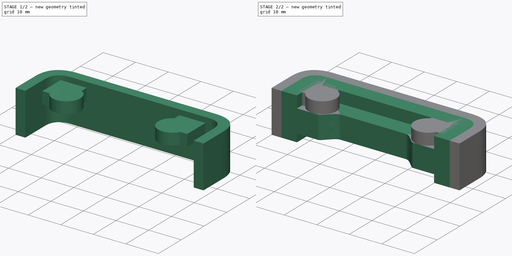
[diagram: build sequence overview — one tinted view per stage of 2, left to right]
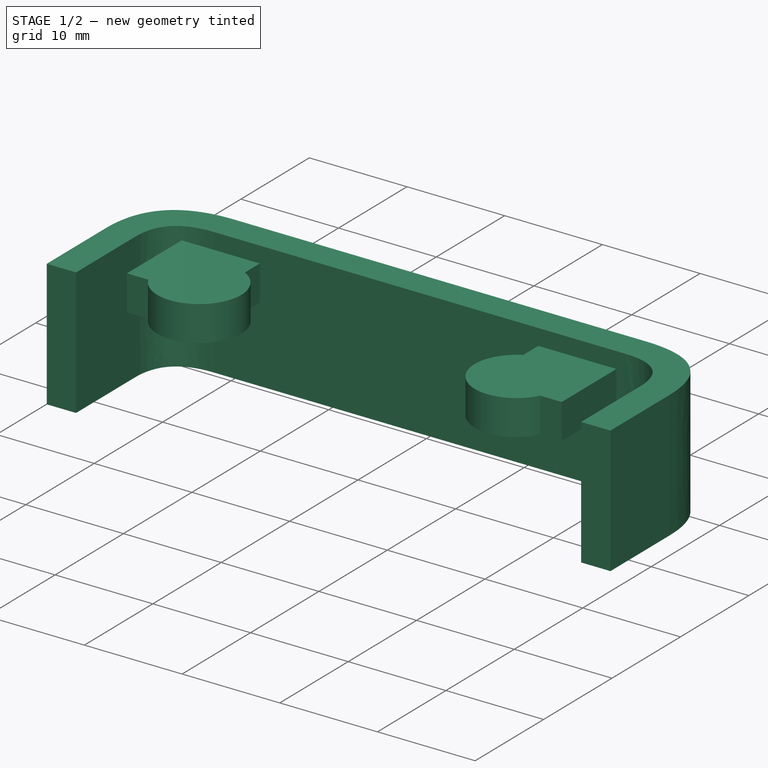
[diagram: stage 1 of 2 — iso view after this stage's code; geometry added in this stage tinted green]
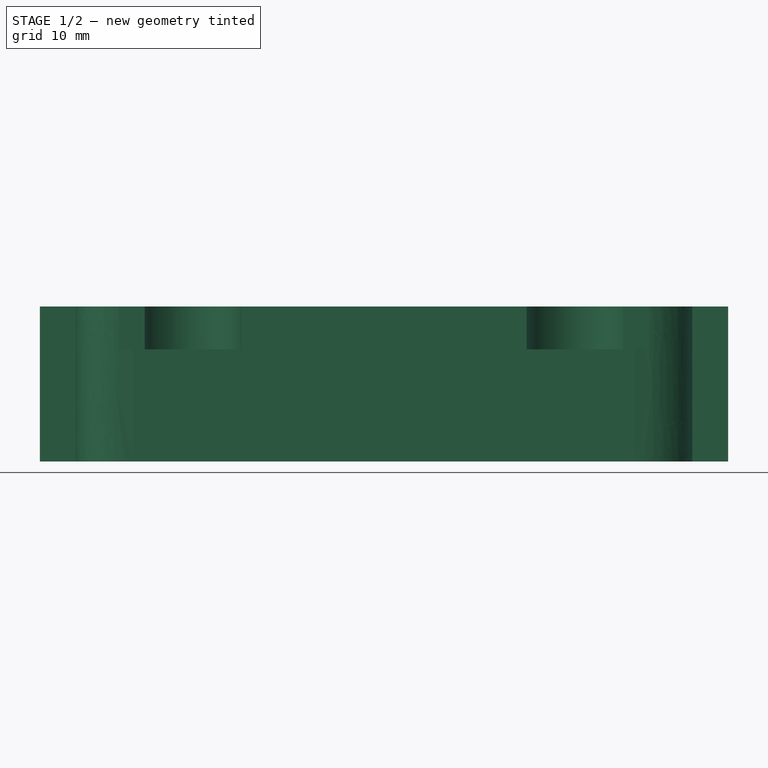
[diagram: stage 1 of 2 — front view after this stage's code; geometry added in this stage tinted green]
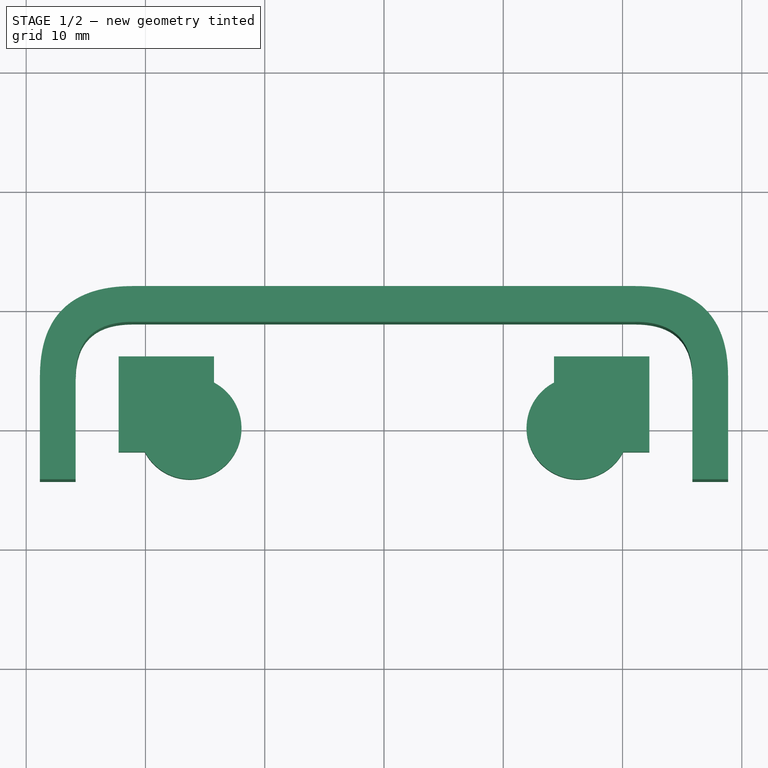
[diagram: stage 1 of 2 — top view after this stage's code; geometry added in this stage tinted green]
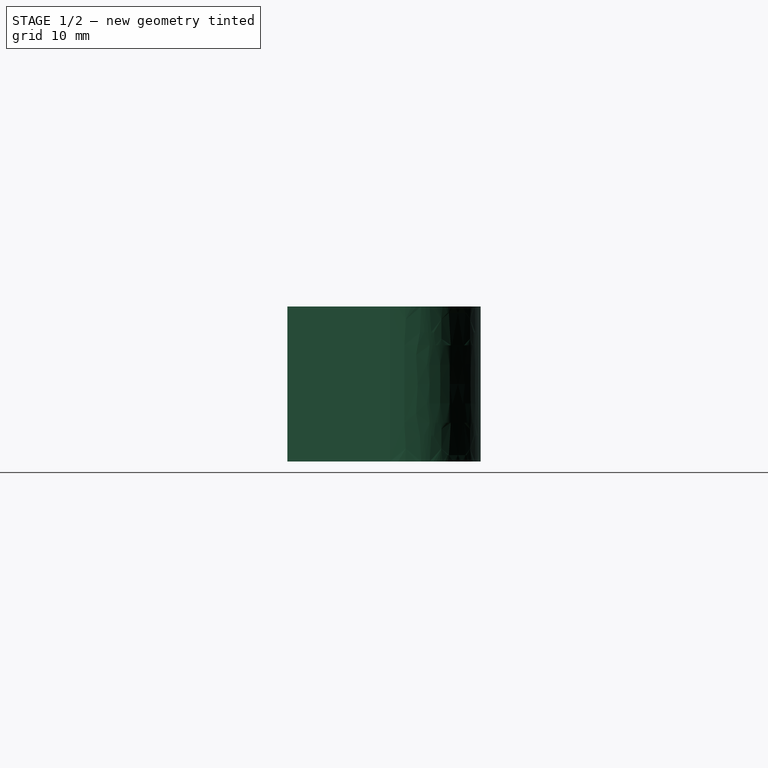
[diagram: stage 1 of 2 — right view after this stage's code; geometry added in this stage tinted green]
FCSTD DOCUMENT  (FreeCAD 0.19R0.19.2)
Label: 007
License: All rights reserved
LicenseURL: http://en.wikipedia.org/wiki/All_rights_reserved
objects: Sketcher::SketchObject×4, Part::Extrusion×4
note: 8 computed .brp shape members not serialized (recipe doc carries the construction recipe); baked Part::Feature solids carry a one-line shape summary decoded from their .brp

FEATURE [Sketcher::SketchObject] Sketch002  label="attatchmentPieceEndScrewHoleCaps"
  FullyConstrained = true
  sketch-geometry (10):
    g0: ArcOfCircle CenterX=16.25 CenterY=0 CenterZ=0 NormalX=0 NormalY=0 NormalZ=1 AngleXU=0 Radius=4.3 StartAngle=2.05456 EndAngle=5.79942
    g1: ArcOfCircle CenterX=-16.25 CenterY=0 CenterZ=0 NormalX=0 NormalY=0 NormalZ=1 AngleXU=0 Radius=4.3 StartAngle=3.62536 EndAngle=7.37022
    g2: LineSegment StartX=14.25 StartY=3.80657 StartZ=0 EndX=14.25 EndY=6 EndZ=0
    g3: LineSegment StartX=20.0566 StartY=-2 StartZ=0 EndX=22.25 EndY=-2 EndZ=0
    g4: LineSegment StartX=-22.25 StartY=-2 StartZ=0 EndX=-20.0566 EndY=-2 EndZ=0
    g5: LineSegment StartX=-14.25 StartY=3.80657 StartZ=0 EndX=-14.25 EndY=6 EndZ=0
    g6: LineSegment StartX=-14.25 StartY=6 StartZ=0 EndX=-22.25 EndY=6 EndZ=0
    g7: LineSegment StartX=-22.25 StartY=-2 StartZ=0 EndX=-22.25 EndY=6 EndZ=0
    g8: LineSegment StartX=22.25 StartY=-2 StartZ=0 EndX=22.25 EndY=6 EndZ=0
    g9: LineSegment StartX=14.25 StartY=6 StartZ=0 EndX=22.25 EndY=6 EndZ=0
  constraints (25):
    c: Block(g1)
    c: Block(g0)
    c: Vertical(g2)
    c: Horizontal(g3)
    c: Horizontal(g4)
    c: Vertical(g5)
    c: Coincident(g6,g5)
    c: Horizontal(g6)
    c: Coincident(g7,g4)
    c: Vertical(g7)
    c: Coincident(g8,g3)
    c: Vertical(g8)
    c: Coincident(g9,g2)
    c: Horizontal(g9)
    c: Coincident(g7,g6)
    c: Coincident(g8,g9)
    c: Block(g9)
    c: Block(g8)
    c: Block(g6)
    c: Block(g7)
    c: Coincident(g1,g4)
    c: Coincident(g1,g5)
    c: Coincident(g0,g2)
    c: Coincident(g0,g3)
    c: Block(g2)
FEATURE [Part::Extrusion] Extrude002  label="attatchmentPieceEndScrewHoleCaps001"
  Base = -> Sketch002
  Dir = (0,0,1)
  DirMode = 2
  FaceMakerClass = Part::FaceMakerBullseye
  LengthFwd = 3.6
  LengthRev = 0
  Placement = pos=(0,0,7) rot=(0,0,1;0rad)
  Solid = true
  Symmetric = false
FEATURE [Sketcher::SketchObject] Sketch003  label="mainBumpperPieceAttatchment"
  FullyConstrained = true
  sketch-geometry (36):
    g0: Circle CenterX=28.85 CenterY=4.3 CenterZ=0 NormalX=0 NormalY=0 NormalZ=1 AngleXU=0 Radius=1
    g1: Circle CenterX=28.85 CenterY=11.9 CenterZ=0 NormalX=0 NormalY=0 NormalZ=1 AngleXU=0 Radius=1
    g2: Circle CenterX=21.05 CenterY=11.9 CenterZ=0 NormalX=0 NormalY=0 NormalZ=1 AngleXU=0 Radius=1
    g3: BSplineCurve PolesCount=3 KnotsCount=2 Degree=2 IsPeriodic=0
    g4: GeomPoint X=28.85 Y=4.3 Z=0
    g5: GeomPoint X=21.05 Y=11.9 Z=0
    g6: Circle CenterX=-28.85 CenterY=4.3 CenterZ=0 NormalX=0 NormalY=0 NormalZ=1 AngleXU=0 Radius=1
    g7: Circle CenterX=-28.85 CenterY=11.9 CenterZ=0 NormalX=0 NormalY=0 NormalZ=1 AngleXU=0 Radius=1
    g8: Circle CenterX=-21.05 CenterY=11.9 CenterZ=0 NormalX=0 NormalY=0 NormalZ=1 AngleXU=0 Radius=1
    g9: BSplineCurve PolesCount=3 KnotsCount=2 Degree=2 IsPeriodic=0
    g10: GeomPoint X=-28.85 Y=4.3 Z=0
    g11: GeomPoint X=-21.05 Y=11.9 Z=0
    g12: LineSegment StartX=-28.85 StartY=4.3 StartZ=0 EndX=-28.85 EndY=-4.3 EndZ=0
    g13: LineSegment StartX=-21.05 StartY=11.9 StartZ=0 EndX=21.05 EndY=11.9 EndZ=0
    g14: LineSegment StartX=28.85 StartY=4.3 StartZ=0 EndX=28.85 EndY=-4.3 EndZ=0
    g15: LineSegment StartX=25.85 StartY=8.9 StartZ=0 EndX=25.85 EndY=9.2 EndZ=0
    g16: LineSegment StartX=-25.85 StartY=8.9 StartZ=0 EndX=-25.85 EndY=9.19666 EndZ=0
    g17: LineSegment StartX=-25.85 StartY=9.19666 StartZ=0 EndX=-26.15 EndY=9.19666 EndZ=0
    g18: LineSegment StartX=26.15 StartY=9.2 StartZ=0 EndX=25.85 EndY=9.2 EndZ=0
    g19: Circle CenterX=21.05 CenterY=9.2 CenterZ=0 NormalX=0 NormalY=0 NormalZ=1 AngleXU=0 Radius=1
    g20: Circle CenterX=26.15 CenterY=9.2 CenterZ=0 NormalX=0 NormalY=0 NormalZ=1 AngleXU=0 Radius=1
    g21: Circle CenterX=26.15 CenterY=4.3 CenterZ=0 NormalX=0 NormalY=0 NormalZ=1 AngleXU=0 Radius=1
    g22: BSplineCurve PolesCount=3 KnotsCount=2 Degree=2 IsPeriodic=0
    g23: GeomPoint X=21.05 Y=9.2 Z=0
    g24: GeomPoint X=26.15 Y=4.3 Z=0
    g25: Circle CenterX=-21.05 CenterY=9.2 CenterZ=0 NormalX=0 NormalY=0 NormalZ=1 AngleXU=0 Radius=1
    g26: Circle CenterX=-26.15 CenterY=9.19666 CenterZ=0 NormalX=0 NormalY=0 NormalZ=1 AngleXU=0 Radius=1
    g27: Circle CenterX=-26.15 CenterY=4.3 CenterZ=0 NormalX=0 NormalY=0 NormalZ=1 AngleXU=0 Radius=1
    g28: BSplineCurve PolesCount=3 KnotsCount=2 Degree=2 IsPeriodic=0
    g29: GeomPoint X=-21.05 Y=9.2 Z=0
    g30: GeomPoint X=-26.15 Y=4.3 Z=0
    g31: LineSegment StartX=-26.15 StartY=-4.3 StartZ=0 EndX=-26.15 EndY=4.3 EndZ=0
    g32: LineSegment StartX=-21.05 StartY=9.2 StartZ=0 EndX=21.05 EndY=9.2 EndZ=0
    g33: LineSegment StartX=26.15 StartY=-4.3 StartZ=0 EndX=26.15 EndY=4.3 EndZ=0
    g34: LineSegment StartX=-26.15 StartY=-4.3 StartZ=0 EndX=-28.85 EndY=-4.3 EndZ=0
    g35: LineSegment StartX=26.15 StartY=-4.3 StartZ=0 EndX=28.85 EndY=-4.3 EndZ=0
  constraints (66):
    c: Weight(g0) = 1
    c: Equal(g0,g1)
    c: Equal(g0,g2)
    c: InternalAlignment(g0,g3)
    c: InternalAlignment(g1,g3)
    c: InternalAlignment(g2,g3)
    c: InternalAlignment(g4,g3)
    c: InternalAlignment(g5,g3)
    c: Weight(g6) = 1
    c: Equal(g6,g7)
    c: Equal(g6,g8)
    c: InternalAlignment(g6,g9)
    c: InternalAlignment(g7,g9)
    c: InternalAlignment(g8,g9)
    c: InternalAlignment(g10,g9)
    c: InternalAlignment(g11,g9)
    c: Block(g3)
    c: Block(g9)
    c: Vertical(g12)
    c: Horizontal(g13)
    c: Vertical(g14)
    c: Block(g14)
    c: Block(g13)
    c: Block(g12)
    c: Vertical(g15)
    c: Vertical(g16)
    c: Block(g16)
    c: Coincident(g17,g16)
    c: Horizontal(g17)
    c: Distance(g17) = 0.3
    c: Horizontal(g18)
    c: Equal(g17,g18) = 0.3
    c: Block(g15)
    c: Coincident(g18,g15)
    c: Weight(g19) = 1
    c: Equal(g19,g20)
    c: Coincident(g20,g18)
    c: Equal(g19,g21)
    c: InternalAlignment(g19,g22)
    c: InternalAlignment(g20,g22)
    c: InternalAlignment(g21,g22)
    c: InternalAlignment(g23,g22)
    c: InternalAlignment(g24,g22)
    c: Weight(g25) = 1
    c: Equal(g25,g26)
    c: Coincident(g26,g17)
    c: Equal(g25,g27)
    c: InternalAlignment(g25,g28)
    c: InternalAlignment(g26,g28)
    c: InternalAlignment(g27,g28)
    c: InternalAlignment(g29,g28)
    c: InternalAlignment(g30,g28)
    c: Vertical(g31)
    c: Horizontal(g32)
    c: Vertical(g33)
    c: Block(g22)
    c: Block(g33)
    c: Block(g32)
    c: Block(g28)
    c: Block(g31)
    c: Coincident(g34,g31)
    c: Coincident(g34,g12)
    c: Horizontal(g34)
    c: Coincident(g35,g33)
    c: Coincident(g35,g14)
    c: Horizontal(g35)
FEATURE [Part::Extrusion] Extrude003
  Base = -> Sketch003
  Dir = (0,0,1)
  DirMode = 2
  FaceMakerClass = Part::FaceMakerBullseye
  LengthFwd = 13
  LengthRev = 0
  Placement = pos=(0,0,-2.4) rot=(0,0,1;0rad)
  Solid = true
  Symmetric = false
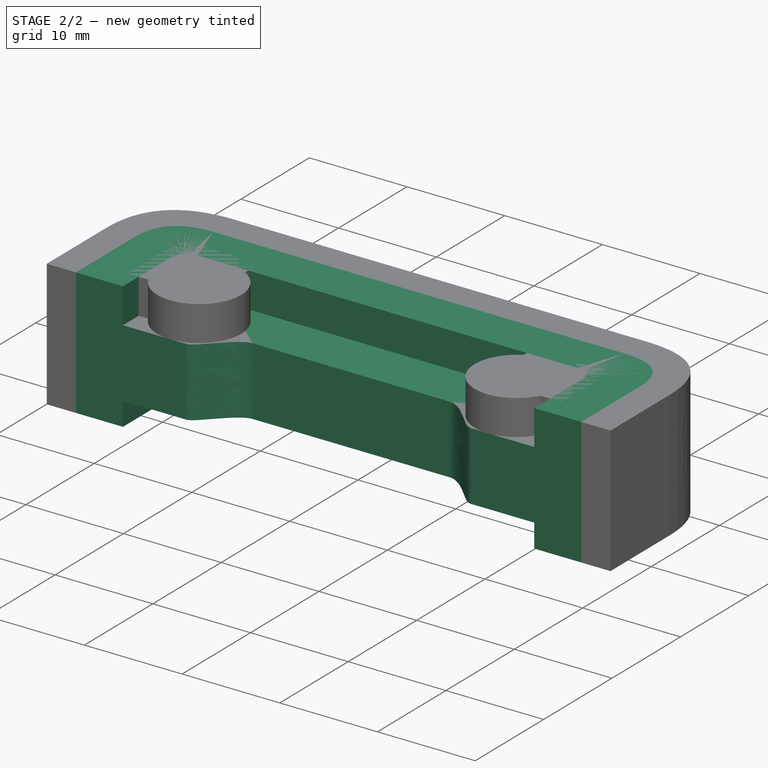
[diagram: stage 2 of 2 — iso view after this stage's code; geometry added in this stage tinted green]
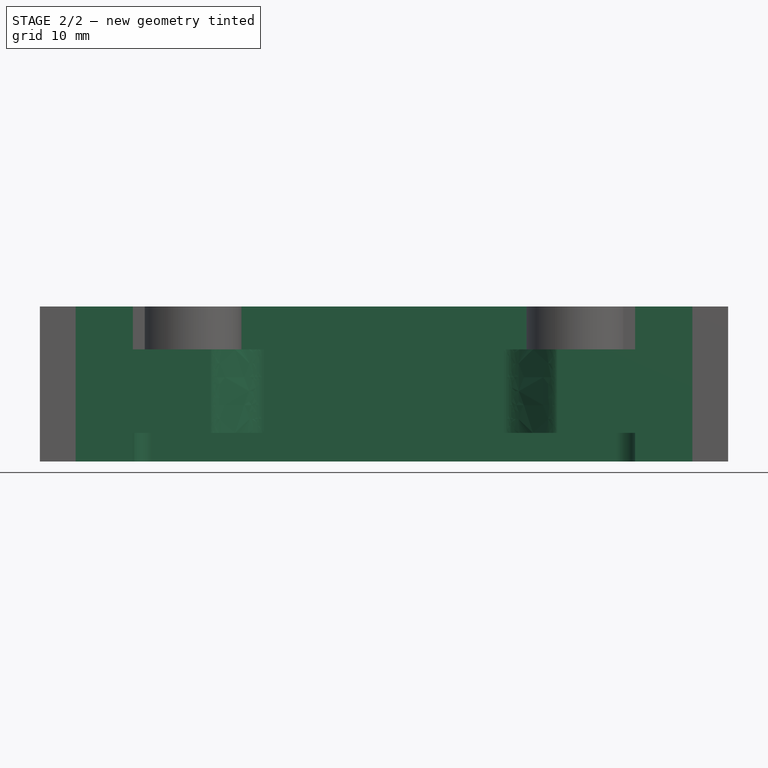
[diagram: stage 2 of 2 — front view after this stage's code; geometry added in this stage tinted green]
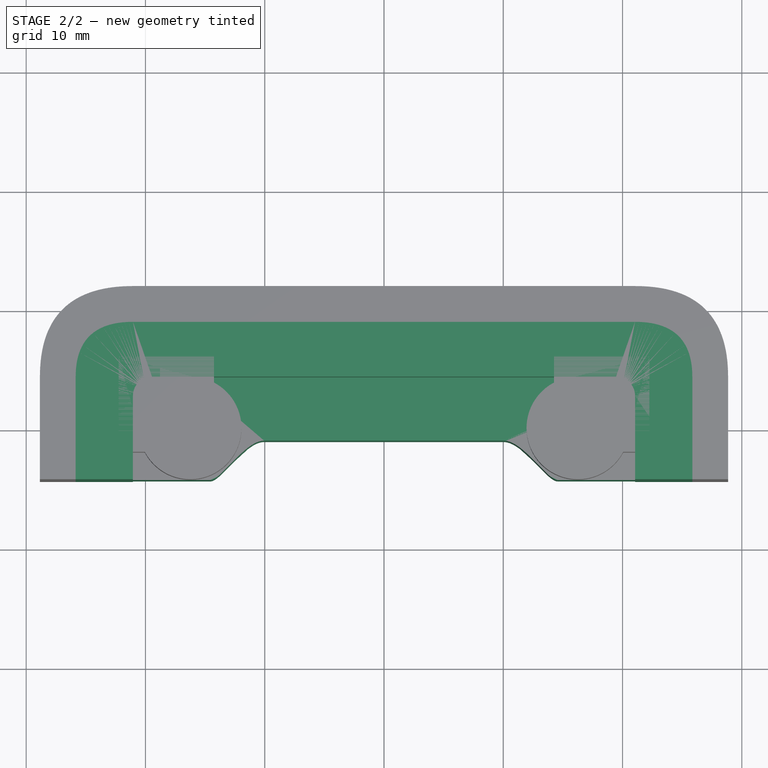
[diagram: stage 2 of 2 — top view after this stage's code; geometry added in this stage tinted green]
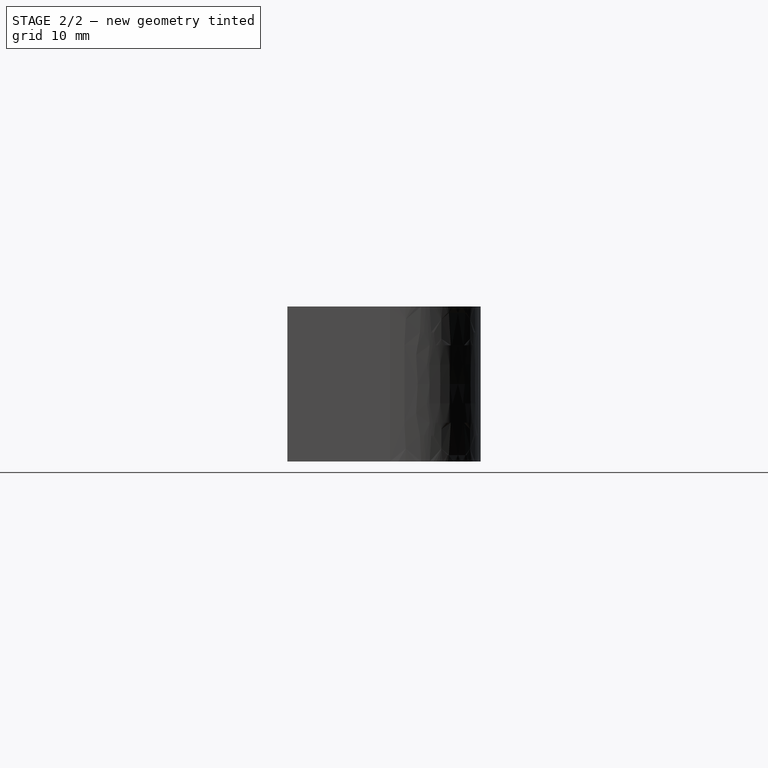
[diagram: stage 2 of 2 — right view after this stage's code; geometry added in this stage tinted green]
FEATURE [Sketcher::SketchObject] Sketch  label="attatchmentPiece"
  FullyConstrained = true
  sketch-geometry (28):
    g0: Circle CenterX=-16.25 CenterY=0 CenterZ=0 NormalX=0 NormalY=0 NormalZ=1 AngleXU=0 Radius=1.5
    g1: Circle CenterX=16.25 CenterY=0 CenterZ=0 NormalX=0 NormalY=0 NormalZ=1 AngleXU=0 Radius=1.5
    g2: LineSegment StartX=21.05 StartY=0 StartZ=0 EndX=21.05 EndY=-1 EndZ=0
    g3: LineSegment StartX=21.05 StartY=-1 StartZ=0 EndX=21.05 EndY=-4.3 EndZ=0
    g4: LineSegment StartX=-21.05 StartY=0 StartZ=0 EndX=-21.05 EndY=-1 EndZ=0
    g5: LineSegment StartX=-21.05 StartY=-1 StartZ=0 EndX=-21.05 EndY=-4.3 EndZ=0
    g6: LineSegment StartX=-21.05 StartY=-4.3 StartZ=0 EndX=-16.25 EndY=-4.3 EndZ=0
    g7: LineSegment StartX=-16.25 StartY=4.3 StartZ=0 EndX=21.05 EndY=4.3 EndZ=0
    g8: LineSegment StartX=-16.25 StartY=4.3 StartZ=0 EndX=-21.05 EndY=4.3 EndZ=0
    g9: LineSegment StartX=-21.05 StartY=0 StartZ=0 EndX=-21.05 EndY=4.3 EndZ=0
    g10: LineSegment StartX=21.05 StartY=0 StartZ=0 EndX=21.05 EndY=4.3 EndZ=0
    g11-g14: Circle x4 (B-spline internal-alignment scaffolding for g15; pole/knot coordinates omitted)
    g15: BSplineCurve PolesCount=4 KnotsCount=2 Degree=3 IsPeriodic=0
    g16: GeomPoint X=-10.05 Y=-1 Z=0
    g17: GeomPoint X=-14.55 Y=-4.3 Z=0
    g18-g21: Circle x4 (B-spline internal-alignment scaffolding for g22; pole/knot coordinates omitted)
    g22: BSplineCurve PolesCount=4 KnotsCount=2 Degree=3 IsPeriodic=0
    g23: GeomPoint X=10.05 Y=-1 Z=0
    g24: GeomPoint X=14.55 Y=-4.3 Z=0
    g25: LineSegment StartX=10.05 StartY=-1 StartZ=0 EndX=-10.05 EndY=-1 EndZ=0
    g26: LineSegment StartX=-16.25 StartY=-4.3 StartZ=0 EndX=-14.55 EndY=-4.3 EndZ=0
    g27: LineSegment StartX=14.55 StartY=-4.3 StartZ=0 EndX=21.05 EndY=-4.3 EndZ=0
  constraints (49):
    c: Block(g1)
    c: Block(g0)
    c: Vertical(g2)
    c: Coincident(g3,g2)
    c: Vertical(g3)
    c: Block(g2)
    c: Vertical(g4)
    c: Block(g4)
    c: Vertical(g5)
    c: Coincident(g5,g4)
    c: Distance(g5) = 3.3
    c: Horizontal(g6)
    c: Coincident(g6,g5)
    c: Distance(g6) = 4.8
    c: Horizontal(g7)
    c: Horizontal(g8)
    c: Vertical(g9)
    c: Coincident(g9,g8)
    c: Vertical(g10)
    c: Coincident(g10,g7)
    c: Block(g7)
    c: Block(g9)
    c: Block(g8)
    c: Block(g10)
    c: Weight(g11) = 1
    c: Equal(g11,g12)
    c: Equal(g11,g13)
    c: Equal(g11,g14)
    c: InternalAlignment(g11-g14 -> g15) x4
    c: InternalAlignment(g16,g15)
    c: InternalAlignment(g17,g15)
    c: Weight(g18) = 1
    c: Equal(g18,g19)
    c: Equal(g18,g20)
    c: Equal(g18,g21)
    c: InternalAlignment(g18-g21 -> g22) x4
    c: InternalAlignment(g23,g22)
    c: InternalAlignment(g24,g22)
    c: Block(g22)
    c: Block(g15)
    c: Coincident(g25,g22)
    c: Coincident(g25,g15)
    c: Horizontal(g25)
    c: Coincident(g26,g6)
    c: Coincident(g26,g15)
    c: Horizontal(g26)
    c: Coincident(g27,g22)
    c: Coincident(g27,g3)
    c: Horizontal(g27)
FEATURE [Part::Extrusion] Extrude  label="attatchmentPiece001"
  Base = -> Sketch
  Dir = (0,0,1)
  DirMode = 2
  FaceMakerClass = Part::FaceMakerBullseye
  LengthFwd = 7
  LengthRev = 0
  Solid = true
  Symmetric = false
FEATURE [Sketcher::SketchObject] Sketch001  label="attatchmentPieceSurround"
  FullyConstrained = true
  sketch-geometry (22):
    g0: LineSegment StartX=-21.05 StartY=-4.3 StartZ=0 EndX=-25.85 EndY=-4.3 EndZ=0
    g1: LineSegment StartX=25.85 StartY=-4.3 StartZ=0 EndX=21.05 EndY=-4.3 EndZ=0
    g2: LineSegment StartX=-25.85 StartY=-4.3 StartZ=0 EndX=-25.85 EndY=4.3 EndZ=0
    g3: LineSegment StartX=25.85 StartY=-4.3 StartZ=0 EndX=25.85 EndY=4.3 EndZ=0
    g4: LineSegment StartX=-21.05 StartY=8.9 StartZ=0 EndX=21.05 EndY=8.9 EndZ=0
    g5: Circle CenterX=-21.05 CenterY=8.9 CenterZ=0 NormalX=0 NormalY=0 NormalZ=1 AngleXU=0 Radius=1
    g6: Circle CenterX=-25.85 CenterY=8.9 CenterZ=0 NormalX=0 NormalY=0 NormalZ=1 AngleXU=0 Radius=1
    g7: Circle CenterX=-25.85 CenterY=4.3 CenterZ=0 NormalX=0 NormalY=0 NormalZ=1 AngleXU=0 Radius=1
    g8: BSplineCurve PolesCount=3 KnotsCount=2 Degree=2 IsPeriodic=0
    g9: GeomPoint X=-21.05 Y=8.9 Z=0
    g10: GeomPoint X=-25.85 Y=4.3 Z=0
    g11: Circle CenterX=21.05 CenterY=8.9 CenterZ=0 NormalX=0 NormalY=0 NormalZ=1 AngleXU=0 Radius=1
    g12: Circle CenterX=25.85 CenterY=8.9 CenterZ=0 NormalX=0 NormalY=0 NormalZ=1 AngleXU=0 Radius=1
    g13: Circle CenterX=25.85 CenterY=4.3 CenterZ=0 NormalX=0 NormalY=0 NormalZ=1 AngleXU=0 Radius=1
    g14: BSplineCurve PolesCount=3 KnotsCount=2 Degree=2 IsPeriodic=0
    g15: GeomPoint X=21.05 Y=8.9 Z=0
    g16: GeomPoint X=25.85 Y=4.3 Z=0
    g17: ArcOfCircle CenterX=-19.45 CenterY=2.7 CenterZ=0 NormalX=0 NormalY=0 NormalZ=1 AngleXU=0 Radius=1.6 StartAngle=1.5708 EndAngle=3.14159
    g18: ArcOfCircle CenterX=19.45 CenterY=2.7 CenterZ=0 NormalX=0 NormalY=0 NormalZ=1 AngleXU=0 Radius=1.6 StartAngle=0 EndAngle=1.5708
    g19: LineSegment StartX=-19.45 StartY=4.3 StartZ=0 EndX=19.45 EndY=4.3 EndZ=0
    g20: LineSegment StartX=21.05 StartY=2.7 StartZ=0 EndX=21.05 EndY=-4.3 EndZ=0
    g21: LineSegment StartX=-21.05 StartY=2.7 StartZ=0 EndX=-21.05 EndY=-4.3 EndZ=0
  constraints (48):
    c: Horizontal(g0)
    c: Distance(g0) = 4.8
    c: Horizontal(g1)
    c: Equal(g0,g1) = 4.8
    c: Coincident(g2,g0)
    c: Vertical(g2)
    c: Distance(g2) = 8.6
    c: Vertical(g3)
    c: Equal(g2,g3) = 8.6
    c: Coincident(g3,g1)
    c: Horizontal(g4)
    c: Distance(g4) = 42.1
    c: Block(g4)
    c: Coincident(g8,g4)
    c: Weight(g5) = 1
    c: Equal(g5,g6)
    c: Equal(g5,g7)
    c: Coincident(g8,g2)
    c: InternalAlignment(g5,g8)
    c: InternalAlignment(g6,g8)
    c: InternalAlignment(g7,g8)
    c: InternalAlignment(g9,g8)
    c: InternalAlignment(g10,g8)
    c: Coincident(g14,g4)
    c: Weight(g11) = 1
    c: Equal(g11,g12)
    c: Equal(g11,g13)
    c: Coincident(g14,g3)
    c: InternalAlignment(g11,g14)
    c: InternalAlignment(g12,g14)
    c: InternalAlignment(g13,g14)
    c: InternalAlignment(g15,g14)
    c: InternalAlignment(g16,g14)
    c: Block(g1)
    c: Block(g2)
    c: Block(g14)
    c: Block(g8)
    c: Block(g18)
    c: Block(g17)
    c: Coincident(g19,g17)
    c: Coincident(g19,g18)
    c: Horizontal(g19)
    c: Coincident(g20,g18)
    c: Coincident(g20,g1)
    c: Vertical(g20)
    c: Coincident(g21,g17)
    c: Coincident(g21,g0)
    c: Vertical(g21)
FEATURE [Part::Extrusion] Extrude001  label="attatchmentPieceSurround001"
  Base = -> Sketch001
  Dir = (0,0,1)
  DirMode = 2
  FaceMakerClass = Part::FaceMakerBullseye
  LengthFwd = 13
  LengthRev = 0
  Placement = pos=(0,0,-2.4) rot=(0,0,1;0rad)
  Solid = true
  Symmetric = false
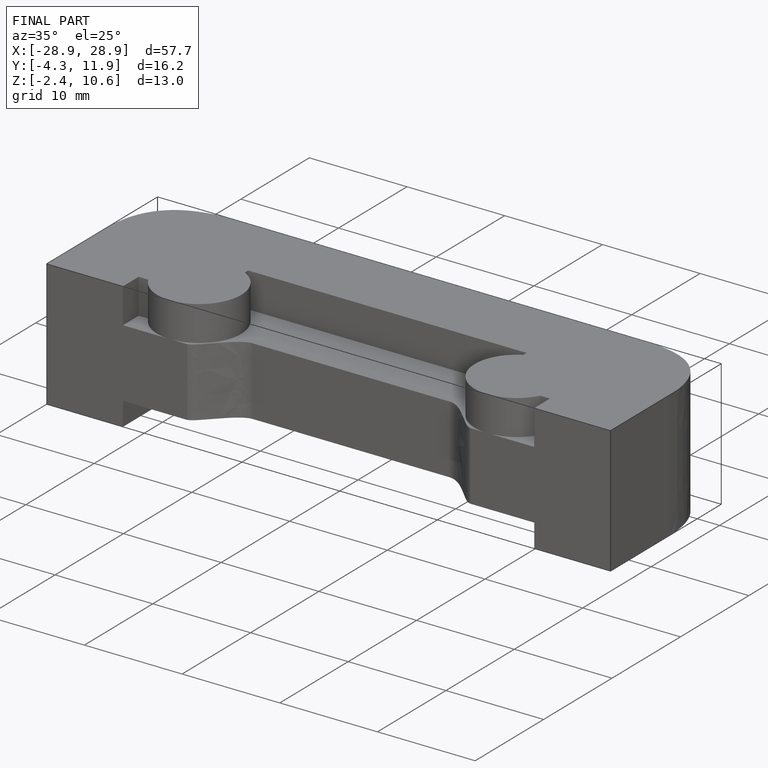
[diagram: finished part — iso view with bounding-box wireframe]
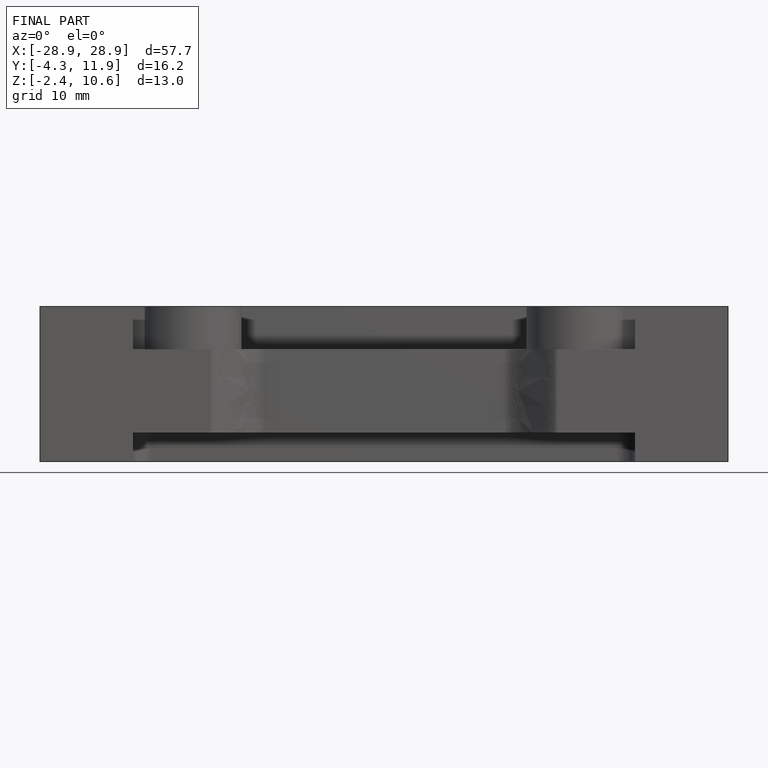
[diagram: finished part — front view with bounding-box wireframe]
